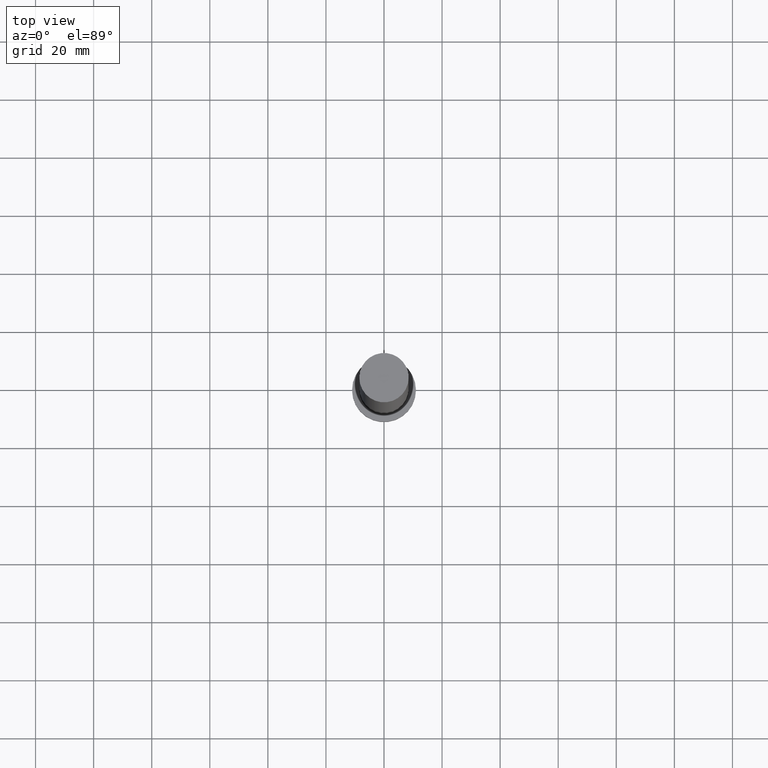
[diagram: clean part render]
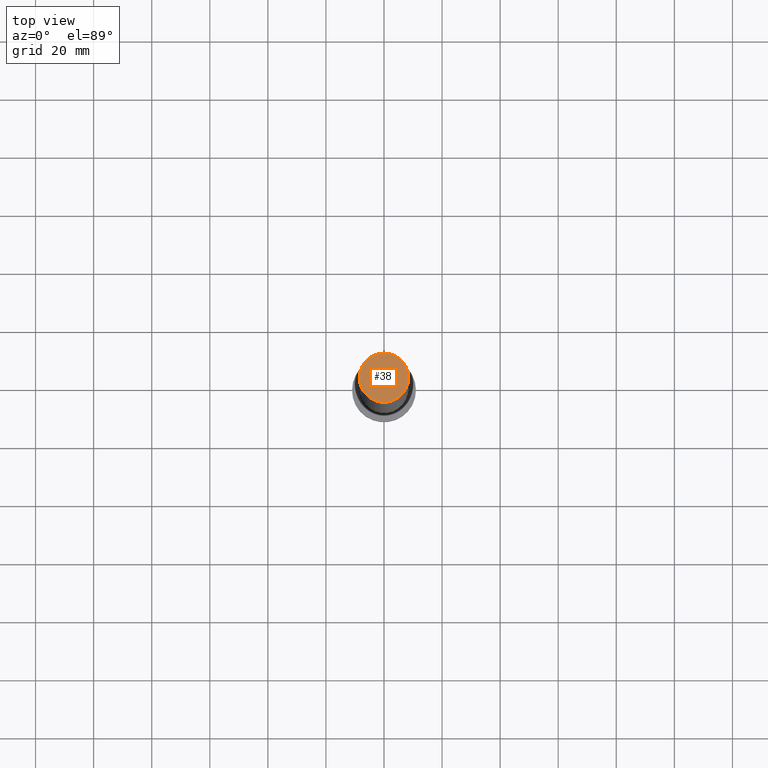
[diagram: same view with one face highlighted and labeled with its STEP entity id]
A machine part, top view. The second image highlights one B-rep face of the part: STEP entity #38.
In plain terms, the highlighted planar face has unit normal (0, 0, 1).
Its self-contained STEP definition (entity closure, byte-faithful):
#18 = CARTESIAN_POINT ( 'NONE',  ( 0.000000000000000000, 0.000000000000000000, 250.0000000000000000 ) ) ;
#22 = CARTESIAN_POINT ( 'NONE',  ( 0.000000000000000000, 0.000000000000000000, 250.0000000000000000 ) ) ;
#38 = ADVANCED_FACE ( 'NONE', ( #250 ), #195, .T. ) ;
#45 = DIRECTION ( 'NONE',  ( 0.000000000000000000, 0.000000000000000000, 1.000000000000000000 ) ) ;
#51 = ORIENTED_EDGE ( 'NONE', *, *, #191, .T. ) ;
#71 = DIRECTION ( 'NONE',  ( 1.000000000000000000, 0.000000000000000000, 0.000000000000000000 ) ) ;
#95 = VERTEX_POINT ( 'NONE', #200 ) ;
#107 = CARTESIAN_POINT ( 'NONE',  ( 0.000000000000000000, 0.000000000000000000, 250.0000000000000000 ) ) ;
#108 = EDGE_LOOP ( 'NONE', ( #231, #51 ) ) ;
#130 = DIRECTION ( 'NONE',  ( 0.000000000000000000, 0.000000000000000000, 1.000000000000000000 ) ) ;
#136 = CIRCLE ( 'NONE', #229, 8.500000000000000000 ) ;
#168 = DIRECTION ( 'NONE',  ( 1.000000000000000000, 0.000000000000000000, -0.000000000000000000 ) ) ;
#175 = AXIS2_PLACEMENT_3D ( 'NONE', #18, #130, #168 ) ;
#181 = DIRECTION ( 'NONE',  ( 1.000000000000000000, 0.000000000000000000, 0.000000000000000000 ) ) ;
#191 = EDGE_CURVE ( 'NONE', #251, #95, #136, .T. ) ;
#193 = CARTESIAN_POINT ( 'NONE',  ( 8.500000000000000000, 1.040949779275250140E-15, 250.0000000000000000 ) ) ;
#194 = AXIS2_PLACEMENT_3D ( 'NONE', #22, #252, #71 ) ;
#195 = PLANE ( 'NONE',  #175 ) ;
#200 = CARTESIAN_POINT ( 'NONE',  ( -8.500000000000000000, 0.000000000000000000, 250.0000000000000000 ) ) ;
#229 = AXIS2_PLACEMENT_3D ( 'NONE', #107, #45, #181 ) ;
#231 = ORIENTED_EDGE ( 'NONE', *, *, #254, .T. ) ;
#240 = CIRCLE ( 'NONE', #194, 8.500000000000000000 ) ;
#250 = FACE_OUTER_BOUND ( 'NONE', #108, .T. ) ;
#251 = VERTEX_POINT ( 'NONE', #193 ) ;
#252 = DIRECTION ( 'NONE',  ( 0.000000000000000000, 0.000000000000000000, 1.000000000000000000 ) ) ;
#254 = EDGE_CURVE ( 'NONE', #95, #251, #240, .T. ) ;